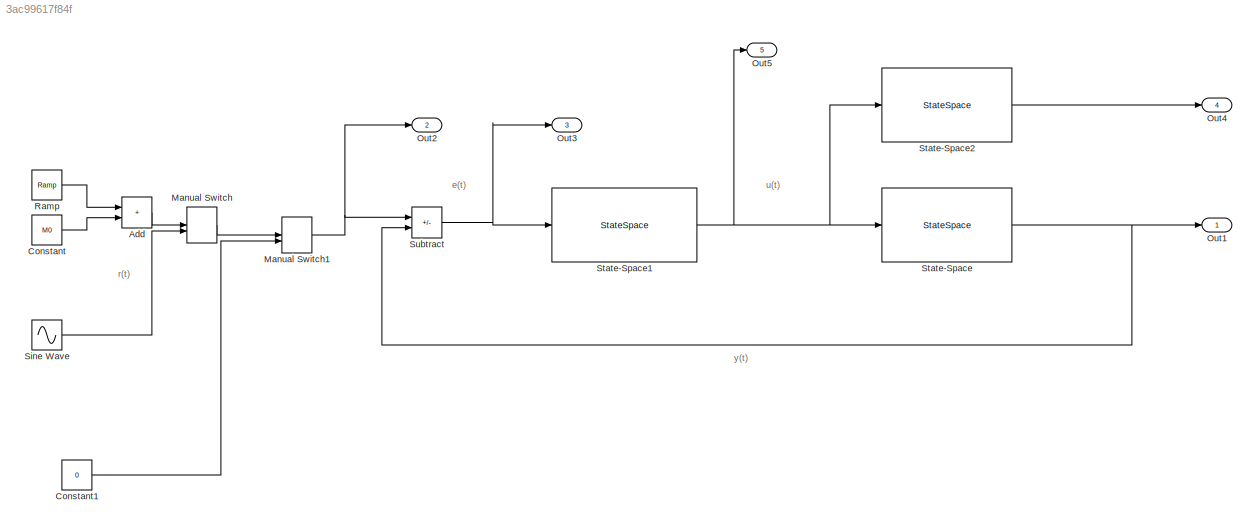
MODEL slx_3ac99617f84f
KIND model
CONFIG AbsTol = auto
CONFIG EnableMultiTasking = off
CONFIG FixedStep = auto
CONFIG MaxStep = auto
CONFIG MinStep = auto
CONFIG RelTol = 1e-3
CONFIG SampleTimeConstraint = Unconstrained
CONFIG SolverName = VariableStepAuto
CONFIG StartTime = 0.0
CONFIG StopTime = 100
BLOCK [Sum] Add
  IconShape = rectangular
  Ports = [2, 1]
BLOCK [Constant] Constant
  Value = M0
BLOCK [Constant] Constant1
  Value = 0
BLOCK [ManualSwitch] Manual Switch
  CurrentSetting = 0
BLOCK [ManualSwitch] Manual Switch1
BLOCK [Outport] Out1
  SignalName = y(t)
BLOCK [Outport] Out2
  Port = 2
  SignalName = r(t)
BLOCK [Outport] Out3
  Port = 3
  SignalName = e(t)
BLOCK [Outport] Out4
  Port = 4
  SignalName = x(t)
BLOCK [Outport] Out5
  Port = 5
BLOCK [Reference] Ramp  REF=simulink/Sources/Ramp
  Ports = [0, 1]
  SourceBlock = simulink/Sources/Ramp
  SourceProductBaseCode = SL
  SourceType = Ramp
BLOCK [Sin] Sine Wave
  Amplitude = M
  Frequency = w
  Phase = phi
  Ports = [0, 1]
  SampleTime = 0
BLOCK [StateSpace] State-Space
  A = A_n
  B = B_n
  C = C_n
  D = D_n
  InitialCondition = x0
  Ports = [1, 1]
BLOCK [StateSpace] State-Space1
  A = Ac
  B = Bc
  C = Cc
  D = Dc
  InitialCondition = 0
  Ports = [1, 1]
BLOCK [StateSpace] State-Space2
  A = A_n
  B = B_n
  C = eye(4)
  D = [0;0;0;0]
  InitialCondition = x0
  Ports = [1, 1]
BLOCK [Sum] Subtract
  IconShape = rectangular
  Inputs = +-
  Ports = [2, 1]
ANNOTATION (root): r(t)
ANNOTATION (root): y(t)
ANNOTATION (root): e(t)
ANNOTATION (root): u(t)
LINE Add:1 -> Manual Switch:1
LINE Constant1:1 -> Manual Switch1:2
LINE Constant:1 -> Add:2
NET Manual Switch1:1 -> Out2:1, Subtract:1
LINE Manual Switch:1 -> Manual Switch1:1
LINE Ramp:1 -> Add:1
LINE Sine Wave:1 -> Manual Switch:2
NET State-Space1:1 -> Out5:1, State-Space2:1, State-Space:1
LINE State-Space2:1 -> Out4:1
NET State-Space:1 -> Out1:1, Subtract:2
NET Subtract:1 -> Out3:1, State-Space1:1
note: NET lines group one-source signal fan-out (src -> all destinations, sorted); 1:1 wires keep LINE
